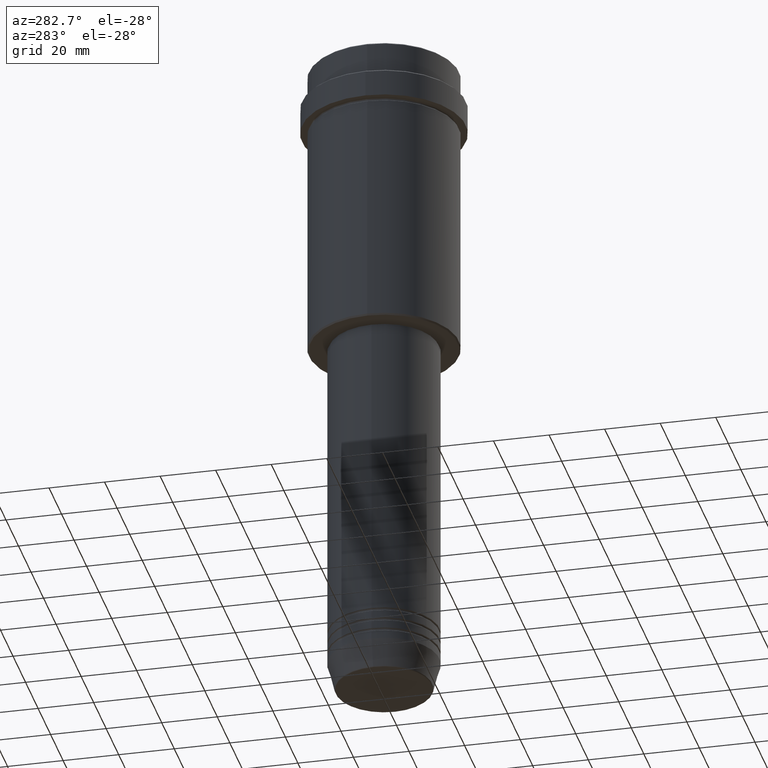
[diagram: clean part render]
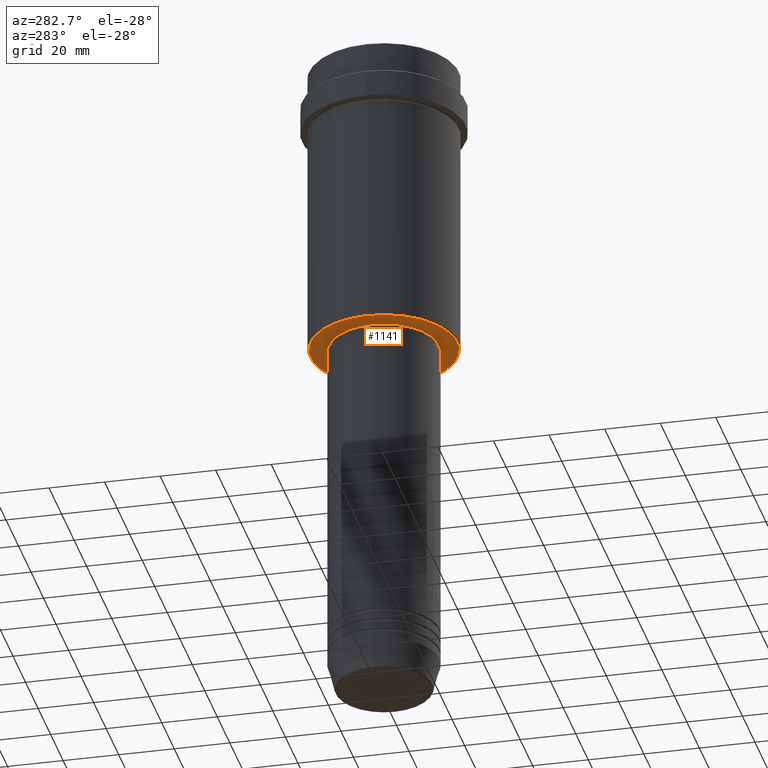
[diagram: same view with one face highlighted and labeled with its STEP entity id]
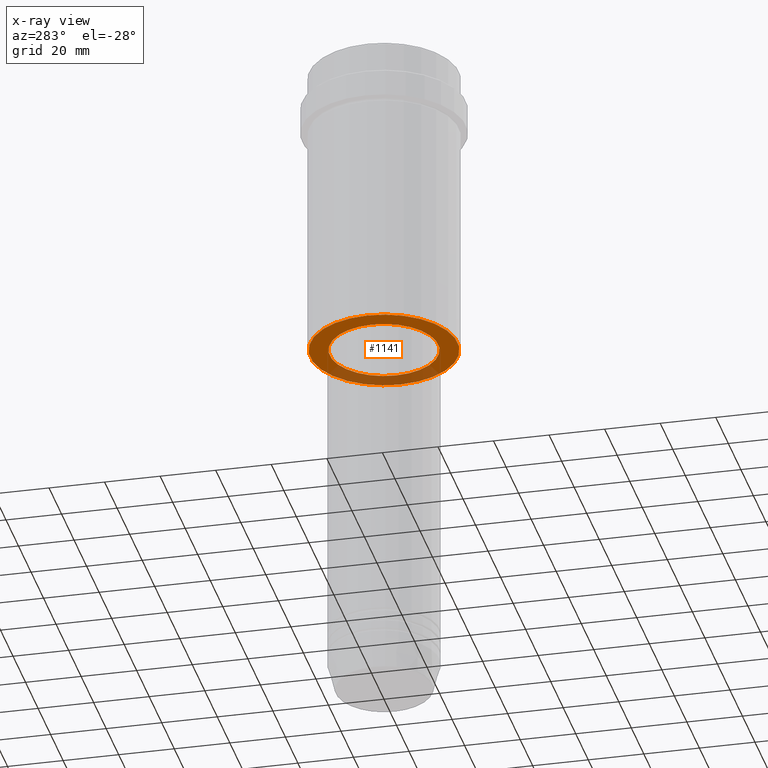
[diagram: x-ray of the same camera — body ghosted, the highlighted face saturated]
A machine part, auxiliary view. The second image highlights one B-rep face of the part: STEP entity #1141.
The next image is the same camera in x-ray: the body ghosted, the highlighted face saturated — about 28% of this face is hidden behind the body in this view.
In plain terms, the highlighted planar face has unit normal (0, 0, -1).
Its self-contained STEP definition (entity closure, byte-faithful):
#13 = AXIS2_PLACEMENT_3D ( 'NONE', #1042, #929, #379 ) ;
#76 = EDGE_LOOP ( 'NONE', ( #1162, #184 ) ) ;
#107 = ORIENTED_EDGE ( 'NONE', *, *, #257, .T. ) ;
#184 = ORIENTED_EDGE ( 'NONE', *, *, #1232, .T. ) ;
#216 = DIRECTION ( 'NONE',  ( -1.000000000000000000, 0.000000000000000000, -0.000000000000000000 ) ) ;
#218 = CARTESIAN_POINT ( 'NONE',  ( 19.49999999999999289, 0.000000000000000000, -108.0000000000000142 ) ) ;
#220 = DIRECTION ( 'NONE',  ( -0.000000000000000000, -0.000000000000000000, 1.000000000000000000 ) ) ;
#253 = DIRECTION ( 'NONE',  ( -1.000000000000000000, 0.000000000000000000, 0.000000000000000000 ) ) ;
#257 = EDGE_CURVE ( 'NONE', #436, #955, #577, .T. ) ;
#350 = AXIS2_PLACEMENT_3D ( 'NONE', #568, #1352, #493 ) ;
#379 = DIRECTION ( 'NONE',  ( 1.000000000000000000, 0.000000000000000000, 0.000000000000000000 ) ) ;
#436 = VERTEX_POINT ( 'NONE', #1261 ) ;
#490 = CIRCLE ( 'NONE', #907, 19.49999999999999289 ) ;
#493 = DIRECTION ( 'NONE',  ( -1.000000000000000000, 0.000000000000000000, 0.000000000000000000 ) ) ;
#548 = CARTESIAN_POINT ( 'NONE',  ( -19.49999999999999289, 2.388061258337338150E-15, -108.0000000000000142 ) ) ;
#550 = PLANE ( 'NONE',  #881 ) ;
#553 = VERTEX_POINT ( 'NONE', #218 ) ;
#568 = CARTESIAN_POINT ( 'NONE',  ( 0.000000000000000000, 0.000000000000000000, -108.0000000000000142 ) ) ;
#577 = CIRCLE ( 'NONE', #1009, 26.50000000000002487 ) ;
#669 = ORIENTED_EDGE ( 'NONE', *, *, #809, .T. ) ;
#672 = FACE_BOUND ( 'NONE', #76, .T. ) ;
#676 = CIRCLE ( 'NONE', #350, 26.50000000000002487 ) ;
#758 = DIRECTION ( 'NONE',  ( 1.000000000000000000, 0.000000000000000000, 0.000000000000000000 ) ) ;
#773 = CARTESIAN_POINT ( 'NONE',  ( 0.000000000000000000, 27.00000000000000355, -108.0000000000000142 ) ) ;
#809 = EDGE_CURVE ( 'NONE', #955, #436, #676, .T. ) ;
#881 = AXIS2_PLACEMENT_3D ( 'NONE', #773, #983, #216 ) ;
#907 = AXIS2_PLACEMENT_3D ( 'NONE', #1226, #220, #758 ) ;
#929 = DIRECTION ( 'NONE',  ( -0.000000000000000000, -0.000000000000000000, 1.000000000000000000 ) ) ;
#955 = VERTEX_POINT ( 'NONE', #1175 ) ;
#983 = DIRECTION ( 'NONE',  ( 0.000000000000000000, 0.000000000000000000, -1.000000000000000000 ) ) ;
#992 = FACE_OUTER_BOUND ( 'NONE', #1021, .T. ) ;
#1002 = CARTESIAN_POINT ( 'NONE',  ( 0.000000000000000000, 0.000000000000000000, -108.0000000000000142 ) ) ;
#1009 = AXIS2_PLACEMENT_3D ( 'NONE', #1002, #1256, #253 ) ;
#1021 = EDGE_LOOP ( 'NONE', ( #669, #107 ) ) ;
#1042 = CARTESIAN_POINT ( 'NONE',  ( 0.000000000000000000, 0.000000000000000000, -108.0000000000000142 ) ) ;
#1097 = EDGE_CURVE ( 'NONE', #553, #1398, #490, .T. ) ;
#1141 = ADVANCED_FACE ( 'NONE', ( #992, #672 ), #550, .T. ) ;
#1162 = ORIENTED_EDGE ( 'NONE', *, *, #1097, .T. ) ;
#1175 = CARTESIAN_POINT ( 'NONE',  ( 26.50000000000002487, 0.000000000000000000, -108.0000000000000142 ) ) ;
#1226 = CARTESIAN_POINT ( 'NONE',  ( 0.000000000000000000, 0.000000000000000000, -108.0000000000000142 ) ) ;
#1232 = EDGE_CURVE ( 'NONE', #1398, #553, #1380, .T. ) ;
#1256 = DIRECTION ( 'NONE',  ( 0.000000000000000000, 0.000000000000000000, -1.000000000000000000 ) ) ;
#1261 = CARTESIAN_POINT ( 'NONE',  ( -26.50000000000002487, 3.275930187719171524E-15, -108.0000000000000142 ) ) ;
#1352 = DIRECTION ( 'NONE',  ( 0.000000000000000000, 0.000000000000000000, -1.000000000000000000 ) ) ;
#1380 = CIRCLE ( 'NONE', #13, 19.49999999999999289 ) ;
#1398 = VERTEX_POINT ( 'NONE', #548 ) ;